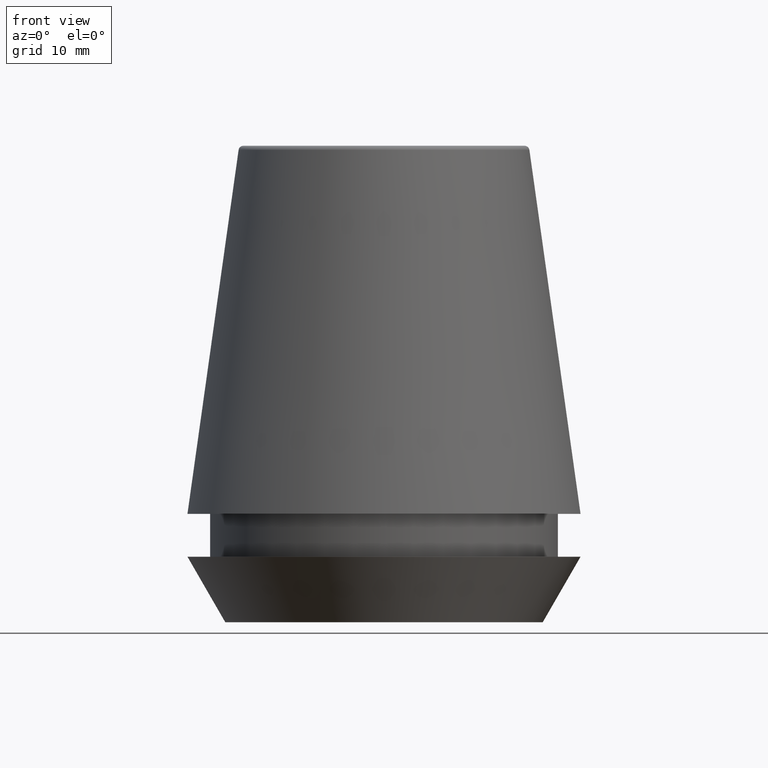
[diagram: clean part render]
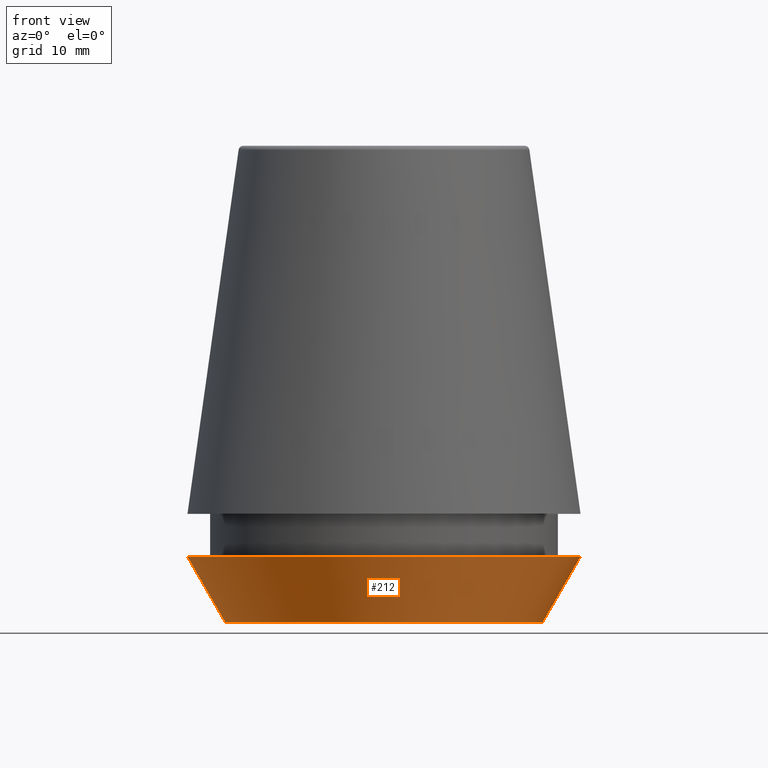
[diagram: same view with one face highlighted and labeled with its STEP entity id]
A machine part, front view. The second image highlights one B-rep face of the part: STEP entity #212.
In plain terms, the highlighted conical surface has half-angle 30 deg.
Its self-contained STEP definition (entity closure, byte-faithful):
#1 = CIRCLE ( 'NONE', #71, 13.32457351945710200 ) ;
#5 = ORIENTED_EDGE ( 'NONE', *, *, #40, .T. ) ;
#7 = CONICAL_SURFACE ( 'NONE', #276, 13.32457351945710200, 0.5235987755982927100 ) ;
#11 = ORIENTED_EDGE ( 'NONE', *, *, #240, .F. ) ;
#37 = LINE ( 'NONE', #225, #98 ) ;
#40 = EDGE_CURVE ( 'NONE', #277, #372, #1, .T. ) ;
#59 = DIRECTION ( 'NONE',  ( -0.4999999999999947300, 6.123233995736700700E-017, 0.8660254037844418200 ) ) ;
#71 = AXIS2_PLACEMENT_3D ( 'NONE', #320, #275, #108 ) ;
#74 = CARTESIAN_POINT ( 'NONE',  ( 13.32457351945710200, 0.0000000000000000000, 0.0000000000000000000 ) ) ;
#98 = VECTOR ( 'NONE', #169, 999.9999999999998900 ) ;
#99 = AXIS2_PLACEMENT_3D ( 'NONE', #194, #348, #261 ) ;
#108 = DIRECTION ( 'NONE',  ( 1.000000000000000000, 0.0000000000000000000, 0.0000000000000000000 ) ) ;
#113 = CARTESIAN_POINT ( 'NONE',  ( -16.50000000000000000, 2.020667218593133100E-015, 5.500000000000005300 ) ) ;
#137 = DIRECTION ( 'NONE',  ( 1.000000000000000000, 0.0000000000000000000, 0.0000000000000000000 ) ) ;
#166 = VERTEX_POINT ( 'NONE', #113 ) ;
#168 = CIRCLE ( 'NONE', #99, 16.50000000000000000 ) ;
#169 = DIRECTION ( 'NONE',  ( 0.4999999999999947300, 0.0000000000000000000, 0.8660254037844418200 ) ) ;
#170 = DIRECTION ( 'NONE',  ( -0.0000000000000000000, -0.0000000000000000000, 1.000000000000000000 ) ) ;
#174 = CARTESIAN_POINT ( 'NONE',  ( 16.50000000000000000, 0.0000000000000000000, 5.500000000000005300 ) ) ;
#194 = CARTESIAN_POINT ( 'NONE',  ( 0.0000000000000000000, 0.0000000000000000000, 5.500000000000005300 ) ) ;
#196 = CARTESIAN_POINT ( 'NONE',  ( -13.32457351945710200, 1.631789631060672300E-015, 0.0000000000000000000 ) ) ;
#209 = LINE ( 'NONE', #196, #299 ) ;
#212 = ADVANCED_FACE ( 'NONE', ( #295 ), #7, .T. ) ;
#213 = EDGE_CURVE ( 'NONE', #166, #310, #168, .T. ) ;
#221 = CARTESIAN_POINT ( 'NONE',  ( 0.0000000000000000000, 0.0000000000000000000, 0.0000000000000000000 ) ) ;
#225 = CARTESIAN_POINT ( 'NONE',  ( 13.32457351945710200, 0.0000000000000000000, 0.0000000000000000000 ) ) ;
#236 = ORIENTED_EDGE ( 'NONE', *, *, #213, .F. ) ;
#240 = EDGE_CURVE ( 'NONE', #277, #166, #209, .T. ) ;
#256 = EDGE_CURVE ( 'NONE', #372, #310, #37, .T. ) ;
#261 = DIRECTION ( 'NONE',  ( 1.000000000000000000, 0.0000000000000000000, 0.0000000000000000000 ) ) ;
#275 = DIRECTION ( 'NONE',  ( -0.0000000000000000000, -0.0000000000000000000, 1.000000000000000000 ) ) ;
#276 = AXIS2_PLACEMENT_3D ( 'NONE', #221, #170, #137 ) ;
#277 = VERTEX_POINT ( 'NONE', #294 ) ;
#294 = CARTESIAN_POINT ( 'NONE',  ( -13.32457351945710200, 1.826228424826902600E-015, 0.0000000000000000000 ) ) ;
#295 = FACE_OUTER_BOUND ( 'NONE', #366, .T. ) ;
#299 = VECTOR ( 'NONE', #59, 999.9999999999998900 ) ;
#310 = VERTEX_POINT ( 'NONE', #174 ) ;
#320 = CARTESIAN_POINT ( 'NONE',  ( 0.0000000000000000000, 0.0000000000000000000, 0.0000000000000000000 ) ) ;
#331 = ORIENTED_EDGE ( 'NONE', *, *, #256, .T. ) ;
#348 = DIRECTION ( 'NONE',  ( -0.0000000000000000000, -0.0000000000000000000, 1.000000000000000000 ) ) ;
#366 = EDGE_LOOP ( 'NONE', ( #11, #5, #331, #236 ) ) ;
#372 = VERTEX_POINT ( 'NONE', #74 ) ;